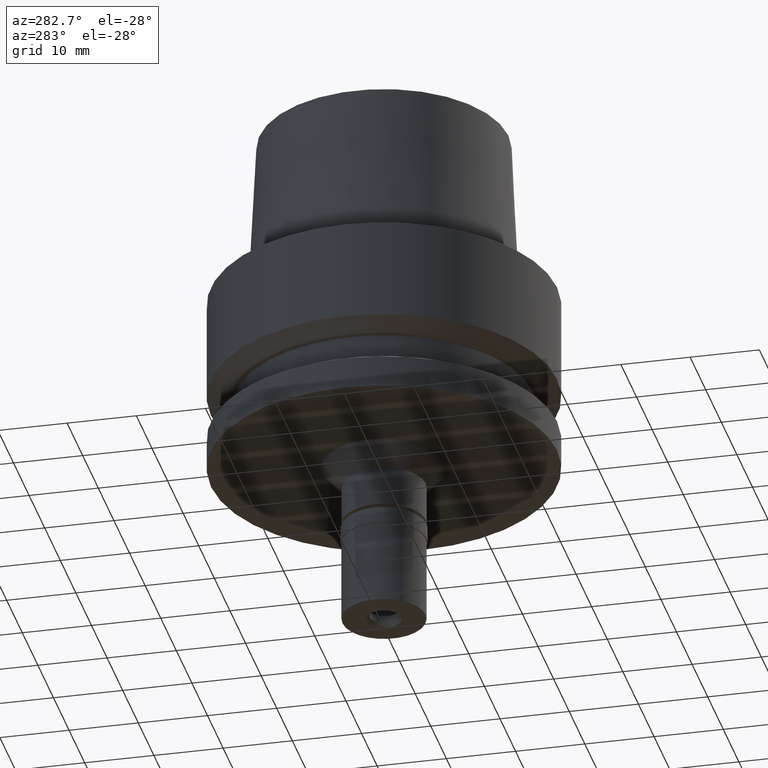
[diagram: clean part render]
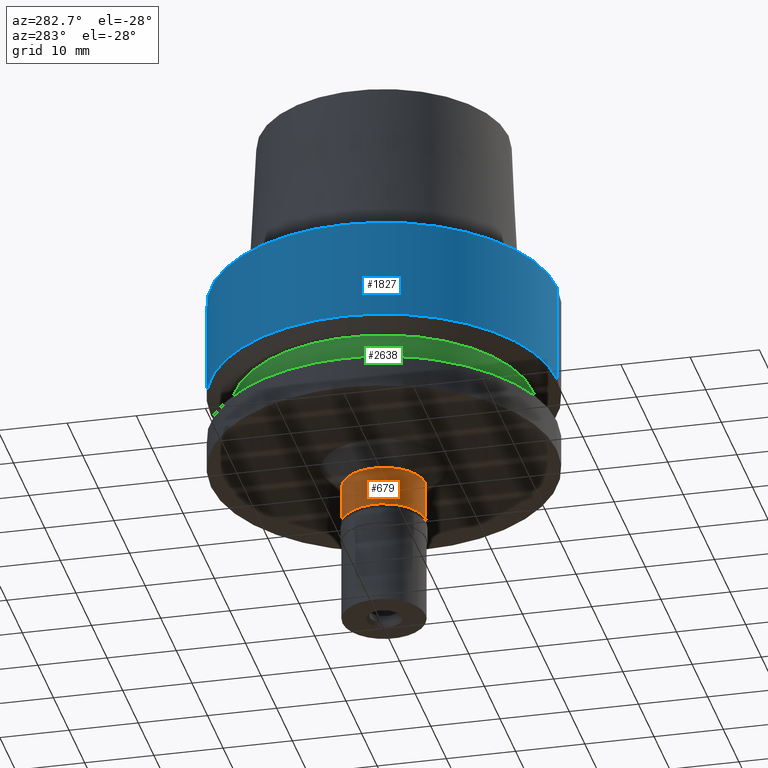
[diagram: same view with three faces highlighted in distinct colors, each labeled with its STEP entity id]
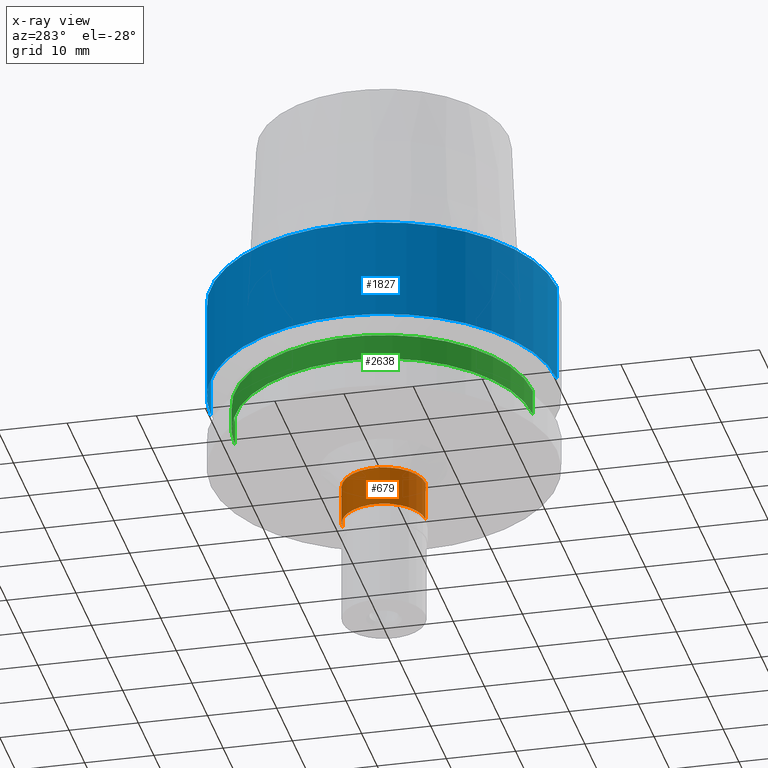
[diagram: x-ray of the same camera — body ghosted, the three highlighted faces saturated]
A machine part, auxiliary view with three faces highlighted in distinct colors.
The next image is the same camera in x-ray (body ghosted, the three faces saturated) — at least one of them is partly hidden behind the body in this view.
Their STEP definitions:

[orange] entity #679 — the highlighted cylindrical surface (partial cylindrical patch) has radius 6 mm, axis along (0, 0, 1).
#10 = DIRECTION ( 'NONE',  ( 0.0000000000000000000, 0.0000000000000000000, 1.000000000000000000 ) ) ;
#152 = AXIS2_PLACEMENT_3D ( 'NONE', #646, #10, #273 ) ;
#271 = CARTESIAN_POINT ( 'NONE',  ( 0.0000000000000000000, 0.0000000000000000000, -29.00000000000000000 ) ) ;
#273 = DIRECTION ( 'NONE',  ( 0.0000000000000000000, 1.000000000000000000, 0.0000000000000000000 ) ) ;
#299 = DIRECTION ( 'NONE',  ( 0.0000000000000000000, -1.000000000000000000, 0.0000000000000000000 ) ) ;
#348 = CARTESIAN_POINT ( 'NONE',  ( 0.0000000000000000000, -6.000000000000000000, -34.79999999999999716 ) ) ;
#414 = CARTESIAN_POINT ( 'NONE',  ( 0.0000000000000000000, 6.000000000000000000, -29.00000000000000000 ) ) ;
#455 = CIRCLE ( 'NONE', #1979, 6.000000000000000000 ) ;
#461 = CYLINDRICAL_SURFACE ( 'NONE', #152, 6.000000000000000000 ) ;
#538 = AXIS2_PLACEMENT_3D ( 'NONE', #2656, #984, #1818 ) ;
#546 = VERTEX_POINT ( 'NONE', #1673 ) ;
#646 = CARTESIAN_POINT ( 'NONE',  ( 0.0000000000000000000, 0.0000000000000000000, -49.54999999999999716 ) ) ;
#679 = ADVANCED_FACE ( 'NONE', ( #1921 ), #461, .T. ) ;
#739 = DIRECTION ( 'NONE',  ( 0.0000000000000000000, 0.0000000000000000000, -1.000000000000000000 ) ) ;
#870 = DIRECTION ( 'NONE',  ( 0.0000000000000000000, 0.0000000000000000000, -1.000000000000000000 ) ) ;
#984 = DIRECTION ( 'NONE',  ( 0.0000000000000000000, 0.0000000000000000000, 1.000000000000000000 ) ) ;
#1030 = ORIENTED_EDGE ( 'NONE', *, *, #2346, .F. ) ;
#1055 = ORIENTED_EDGE ( 'NONE', *, *, #1528, .T. ) ;
#1178 = VERTEX_POINT ( 'NONE', #348 ) ;
#1195 = CARTESIAN_POINT ( 'NONE',  ( 0.0000000000000000000, -6.000000000000000000, -29.00000000000000000 ) ) ;
#1200 = VERTEX_POINT ( 'NONE', #2669 ) ;
#1268 = LINE ( 'NONE', #414, #2028 ) ;
#1377 = ORIENTED_EDGE ( 'NONE', *, *, #2070, .T. ) ;
#1406 = VERTEX_POINT ( 'NONE', #2170 ) ;
#1528 = EDGE_CURVE ( 'NONE', #1406, #1178, #1722, .T. ) ;
#1610 = EDGE_LOOP ( 'NONE', ( #1055, #1030, #1984, #1377 ) ) ;
#1673 = CARTESIAN_POINT ( 'NONE',  ( 0.0000000000000000000, 6.000000000000000000, -29.00000000000000000 ) ) ;
#1722 = CIRCLE ( 'NONE', #538, 6.000000000000000000 ) ;
#1737 = DIRECTION ( 'NONE',  ( 0.0000000000000000000, 0.0000000000000000000, -1.000000000000000000 ) ) ;
#1818 = DIRECTION ( 'NONE',  ( 0.0000000000000000000, 1.000000000000000000, 0.0000000000000000000 ) ) ;
#1844 = LINE ( 'NONE', #1195, #2252 ) ;
#1921 = FACE_OUTER_BOUND ( 'NONE', #1610, .T. ) ;
#1979 = AXIS2_PLACEMENT_3D ( 'NONE', #271, #1737, #299 ) ;
#1984 = ORIENTED_EDGE ( 'NONE', *, *, #2198, .T. ) ;
#2028 = VECTOR ( 'NONE', #870, 1000.000000000000000 ) ;
#2070 = EDGE_CURVE ( 'NONE', #546, #1406, #1268, .T. ) ;
#2170 = CARTESIAN_POINT ( 'NONE',  ( 0.0000000000000000000, 6.000000000000000000, -34.79999999999999716 ) ) ;
#2198 = EDGE_CURVE ( 'NONE', #1200, #546, #455, .T. ) ;
#2252 = VECTOR ( 'NONE', #739, 1000.000000000000000 ) ;
#2346 = EDGE_CURVE ( 'NONE', #1200, #1178, #1844, .T. ) ;
#2656 = CARTESIAN_POINT ( 'NONE',  ( 0.0000000000000000000, 0.0000000000000000000, -34.79999999999999716 ) ) ;
#2669 = CARTESIAN_POINT ( 'NONE',  ( 0.0000000000000000000, -6.000000000000000000, -29.00000000000000000 ) ) ;

[blue] entity #1827 — the highlighted cylindrical surface (partial cylindrical patch) has radius 25 mm, axis along (0, 0, 1).
#17 = DIRECTION ( 'NONE',  ( 0.0000000000000000000, 1.000000000000000000, 0.0000000000000000000 ) ) ;
#114 = CIRCLE ( 'NONE', #157, 25.00000000000000000 ) ;
#124 = CYLINDRICAL_SURFACE ( 'NONE', #890, 25.00000000000000000 ) ;
#157 = AXIS2_PLACEMENT_3D ( 'NONE', #964, #338, #795 ) ;
#338 = DIRECTION ( 'NONE',  ( 0.0000000000000000000, 0.0000000000000000000, 1.000000000000000000 ) ) ;
#359 = CARTESIAN_POINT ( 'NONE',  ( 0.0000000000000000000, 25.00000000000000000, -14.61835441913999922 ) ) ;
#388 = CARTESIAN_POINT ( 'NONE',  ( 0.0000000000000000000, -25.00000000000000000, -2.131628207279999844E-14 ) ) ;
#447 = EDGE_CURVE ( 'NONE', #1618, #910, #510, .T. ) ;
#510 = LINE ( 'NONE', #1355, #1293 ) ;
#517 = ORIENTED_EDGE ( 'NONE', *, *, #1249, .T. ) ;
#555 = DIRECTION ( 'NONE',  ( 0.0000000000000000000, -1.000000000000000000, 0.0000000000000000000 ) ) ;
#597 = EDGE_LOOP ( 'NONE', ( #517, #1521, #1957, #642 ) ) ;
#642 = ORIENTED_EDGE ( 'NONE', *, *, #2201, .T. ) ;
#686 = CARTESIAN_POINT ( 'NONE',  ( 0.0000000000000000000, -25.00000000000000000, -14.61835441913999922 ) ) ;
#795 = DIRECTION ( 'NONE',  ( 0.0000000000000000000, 1.000000000000000000, 0.0000000000000000000 ) ) ;
#881 = FACE_OUTER_BOUND ( 'NONE', #597, .T. ) ;
#890 = AXIS2_PLACEMENT_3D ( 'NONE', #2625, #2128, #17 ) ;
#910 = VERTEX_POINT ( 'NONE', #686 ) ;
#928 = CARTESIAN_POINT ( 'NONE',  ( 0.0000000000000000000, 25.00000000000000000, 0.0000000000000000000 ) ) ;
#964 = CARTESIAN_POINT ( 'NONE',  ( 0.0000000000000000000, 0.0000000000000000000, -14.61835441913999922 ) ) ;
#971 = CARTESIAN_POINT ( 'NONE',  ( 0.0000000000000000000, 25.00000000000000000, -2.131628207279999844E-14 ) ) ;
#1249 = EDGE_CURVE ( 'NONE', #1808, #910, #114, .T. ) ;
#1293 = VECTOR ( 'NONE', #1577, 1000.000000000000000 ) ;
#1355 = CARTESIAN_POINT ( 'NONE',  ( 0.0000000000000000000, -25.00000000000000000, 0.0000000000000000000 ) ) ;
#1463 = AXIS2_PLACEMENT_3D ( 'NONE', #1801, #2420, #555 ) ;
#1521 = ORIENTED_EDGE ( 'NONE', *, *, #447, .F. ) ;
#1544 = EDGE_CURVE ( 'NONE', #1618, #2424, #2628, .T. ) ;
#1577 = DIRECTION ( 'NONE',  ( 0.0000000000000000000, 0.0000000000000000000, -1.000000000000000000 ) ) ;
#1618 = VERTEX_POINT ( 'NONE', #388 ) ;
#1726 = LINE ( 'NONE', #928, #2502 ) ;
#1801 = CARTESIAN_POINT ( 'NONE',  ( 0.0000000000000000000, 0.0000000000000000000, -2.131628207279999844E-14 ) ) ;
#1808 = VERTEX_POINT ( 'NONE', #359 ) ;
#1827 = ADVANCED_FACE ( 'NONE', ( #881 ), #124, .T. ) ;
#1957 = ORIENTED_EDGE ( 'NONE', *, *, #1544, .T. ) ;
#2128 = DIRECTION ( 'NONE',  ( 0.0000000000000000000, 0.0000000000000000000, 1.000000000000000000 ) ) ;
#2134 = DIRECTION ( 'NONE',  ( 0.0000000000000000000, 0.0000000000000000000, -1.000000000000000000 ) ) ;
#2201 = EDGE_CURVE ( 'NONE', #2424, #1808, #1726, .T. ) ;
#2420 = DIRECTION ( 'NONE',  ( 0.0000000000000000000, 0.0000000000000000000, -1.000000000000000000 ) ) ;
#2424 = VERTEX_POINT ( 'NONE', #971 ) ;
#2502 = VECTOR ( 'NONE', #2134, 1000.000000000000000 ) ;
#2625 = CARTESIAN_POINT ( 'NONE',  ( 0.0000000000000000000, 0.0000000000000000000, -49.54999999999999716 ) ) ;
#2628 = CIRCLE ( 'NONE', #1463, 25.00000000000000000 ) ;

[green] entity #2638 — the highlighted cylindrical surface (partial cylindrical patch) has radius 21.5 mm, axis along (0, 0, 1).
#34 = LINE ( 'NONE', #1475, #205 ) ;
#168 = ORIENTED_EDGE ( 'NONE', *, *, #1122, .F. ) ;
#205 = VECTOR ( 'NONE', #2082, 1000.000000000000000 ) ;
#280 = ORIENTED_EDGE ( 'NONE', *, *, #1263, .T. ) ;
#340 = CARTESIAN_POINT ( 'NONE',  ( 0.0000000000000000000, 21.50000000000000000, -16.12500000000000000 ) ) ;
#369 = EDGE_CURVE ( 'NONE', #1852, #2504, #1500, .T. ) ;
#377 = AXIS2_PLACEMENT_3D ( 'NONE', #1608, #2429, #564 ) ;
#423 = CARTESIAN_POINT ( 'NONE',  ( 0.0000000000000000000, 0.0000000000000000000, -49.54999999999999716 ) ) ;
#541 = VECTOR ( 'NONE', #2647, 1000.000000000000000 ) ;
#562 = CARTESIAN_POINT ( 'NONE',  ( 0.0000000000000000000, 0.0000000000000000000, -19.87500000000000000 ) ) ;
#564 = DIRECTION ( 'NONE',  ( 0.0000000000000000000, -1.000000000000000000, 0.0000000000000000000 ) ) ;
#653 = CYLINDRICAL_SURFACE ( 'NONE', #1733, 21.50000000000000000 ) ;
#755 = LINE ( 'NONE', #1597, #541 ) ;
#767 = DIRECTION ( 'NONE',  ( 0.0000000000000000000, 1.000000000000000000, 0.0000000000000000000 ) ) ;
#819 = VERTEX_POINT ( 'NONE', #2099 ) ;
#839 = ORIENTED_EDGE ( 'NONE', *, *, #369, .T. ) ;
#958 = ORIENTED_EDGE ( 'NONE', *, *, #2568, .T. ) ;
#1026 = FACE_OUTER_BOUND ( 'NONE', #2428, .T. ) ;
#1122 = EDGE_CURVE ( 'NONE', #819, #2504, #755, .T. ) ;
#1263 = EDGE_CURVE ( 'NONE', #819, #1387, #1553, .T. ) ;
#1387 = VERTEX_POINT ( 'NONE', #340 ) ;
#1475 = CARTESIAN_POINT ( 'NONE',  ( 0.0000000000000000000, 21.50000000000000000, -16.12500000000000000 ) ) ;
#1500 = CIRCLE ( 'NONE', #2539, 21.50000000000000000 ) ;
#1553 = CIRCLE ( 'NONE', #377, 21.50000000000000000 ) ;
#1597 = CARTESIAN_POINT ( 'NONE',  ( 0.0000000000000000000, -21.50000000000000000, -16.12500000000000000 ) ) ;
#1608 = CARTESIAN_POINT ( 'NONE',  ( 0.0000000000000000000, 0.0000000000000000000, -16.12500000000000000 ) ) ;
#1733 = AXIS2_PLACEMENT_3D ( 'NONE', #423, #1860, #2685 ) ;
#1852 = VERTEX_POINT ( 'NONE', #2515 ) ;
#1860 = DIRECTION ( 'NONE',  ( 0.0000000000000000000, 0.0000000000000000000, 1.000000000000000000 ) ) ;
#2082 = DIRECTION ( 'NONE',  ( 0.0000000000000000000, 0.0000000000000000000, -1.000000000000000000 ) ) ;
#2099 = CARTESIAN_POINT ( 'NONE',  ( 0.0000000000000000000, -21.50000000000000000, -16.12500000000000000 ) ) ;
#2228 = DIRECTION ( 'NONE',  ( 0.0000000000000000000, 0.0000000000000000000, 1.000000000000000000 ) ) ;
#2428 = EDGE_LOOP ( 'NONE', ( #839, #168, #280, #958 ) ) ;
#2429 = DIRECTION ( 'NONE',  ( 0.0000000000000000000, 0.0000000000000000000, -1.000000000000000000 ) ) ;
#2504 = VERTEX_POINT ( 'NONE', #2520 ) ;
#2515 = CARTESIAN_POINT ( 'NONE',  ( 0.0000000000000000000, 21.50000000000000000, -19.87500000000000000 ) ) ;
#2520 = CARTESIAN_POINT ( 'NONE',  ( 0.0000000000000000000, -21.50000000000000000, -19.87500000000000000 ) ) ;
#2539 = AXIS2_PLACEMENT_3D ( 'NONE', #562, #2228, #767 ) ;
#2568 = EDGE_CURVE ( 'NONE', #1387, #1852, #34, .T. ) ;
#2638 = ADVANCED_FACE ( 'NONE', ( #1026 ), #653, .T. ) ;
#2647 = DIRECTION ( 'NONE',  ( 0.0000000000000000000, 0.0000000000000000000, -1.000000000000000000 ) ) ;
#2685 = DIRECTION ( 'NONE',  ( 0.0000000000000000000, 1.000000000000000000, 0.0000000000000000000 ) ) ;